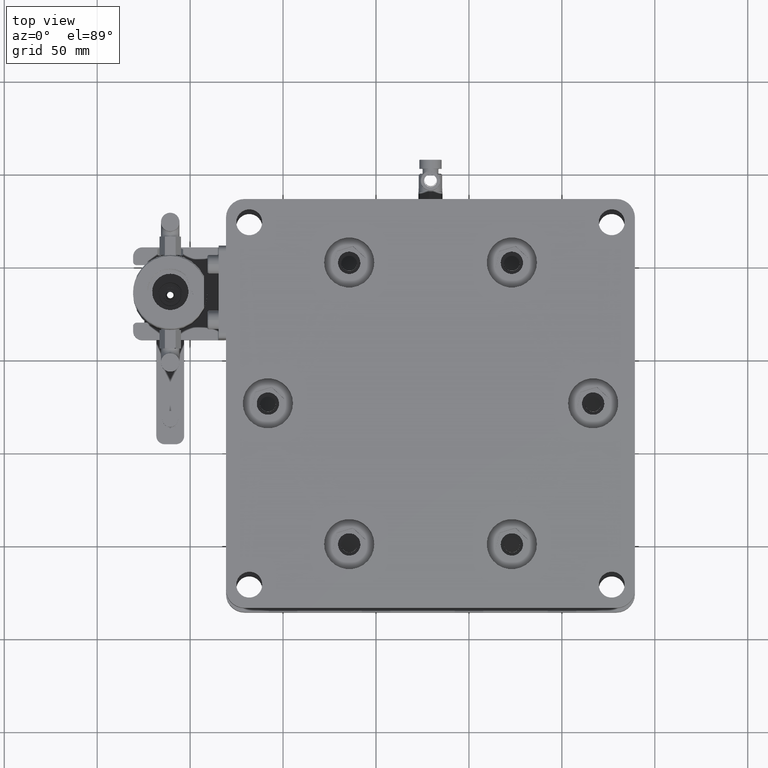
[diagram: clean part render]
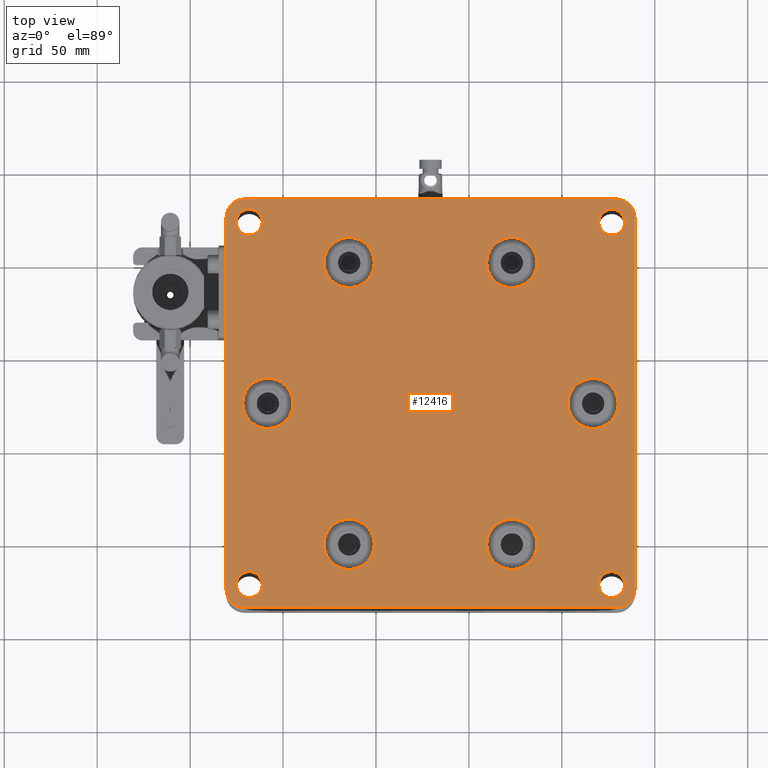
[diagram: same view with one face highlighted and labeled with its STEP entity id]
A machine part, top view. The second image highlights one B-rep face of the part: STEP entity #12416.
In plain terms, the highlighted planar face has unit normal (0, 0, -1).
Its self-contained STEP definition (entity closure, byte-faithful):
#233 = CIRCLE ( 'NONE', #8256, 13.49999999999999822 ) ;
#736 = EDGE_LOOP ( 'NONE', ( #2737 ) ) ;
#777 = AXIS2_PLACEMENT_3D ( 'NONE', #24459, #6554, #15895 ) ;
#818 = CARTESIAN_POINT ( 'NONE',  ( 233.8094785136826204, 71.95413560931456232, 239.0000000000000568 ) ) ;
#955 = AXIS2_PLACEMENT_3D ( 'NONE', #17977, #18129, #11451 ) ;
#979 = CARTESIAN_POINT ( 'NONE',  ( 229.3094785136825919, -125.5458643906854377, 239.0000000000000568 ) ) ;
#1031 = AXIS2_PLACEMENT_3D ( 'NONE', #24325, #24613, #15449 ) ;
#1082 = DIRECTION ( 'NONE',  ( 0.000000000000000000, 0.000000000000000000, 1.000000000000000000 ) ) ;
#1194 = EDGE_CURVE ( 'NONE', #17726, #7972, #18396, .T. ) ;
#1322 = ORIENTED_EDGE ( 'NONE', *, *, #20630, .F. ) ;
#2098 = DIRECTION ( 'NONE',  ( 0.000000000000000000, 0.000000000000000000, 1.000000000000000000 ) ) ;
#2522 = ORIENTED_EDGE ( 'NONE', *, *, #19896, .T. ) ;
#2614 = DIRECTION ( 'NONE',  ( 1.000000000000000000, 0.000000000000000000, 0.000000000000000000 ) ) ;
#2737 = ORIENTED_EDGE ( 'NONE', *, *, #16962, .F. ) ;
#2822 = ORIENTED_EDGE ( 'NONE', *, *, #27572, .F. ) ;
#2913 = DIRECTION ( 'NONE',  ( 0.000000000000000000, 0.000000000000000000, -1.000000000000000000 ) ) ;
#3037 = CIRCLE ( 'NONE', #23348, 13.49999999999999822 ) ;
#3382 = VECTOR ( 'NONE', #11846, 1000.000000000000000 ) ;
#3619 = CIRCLE ( 'NONE', #777, 10.00000000000000178 ) ;
#3912 = ORIENTED_EDGE ( 'NONE', *, *, #6118, .T. ) ;
#3934 = CIRCLE ( 'NONE', #15257, 13.49999999999999822 ) ;
#4060 = CARTESIAN_POINT ( 'NONE',  ( 99.05947851368186718, 50.23135844044783482, 239.0000000000000568 ) ) ;
#4450 = ORIENTED_EDGE ( 'NONE', *, *, #11811, .T. ) ;
#4475 = VERTEX_POINT ( 'NONE', #26631 ) ;
#4969 = DIRECTION ( 'NONE',  ( 0.000000000000000000, 0.000000000000000000, 1.000000000000000000 ) ) ;
#5165 = CARTESIAN_POINT ( 'NONE',  ( 19.30947851368255996, 74.45413560931457653, 239.0000000000000568 ) ) ;
#5176 = DIRECTION ( 'NONE',  ( 0.000000000000000000, 0.000000000000000000, -1.000000000000000000 ) ) ;
#5273 = AXIS2_PLACEMENT_3D ( 'NONE', #28868, #8596, #8885 ) ;
#5527 = EDGE_LOOP ( 'NONE', ( #27874 ) ) ;
#5573 = DIRECTION ( 'NONE',  ( 0.000000000000000000, 0.000000000000000000, 1.000000000000000000 ) ) ;
#5872 = DIRECTION ( 'NONE',  ( 1.000000000000000000, 0.000000000000000000, 0.000000000000000000 ) ) ;
#6118 = EDGE_CURVE ( 'NONE', #26431, #26431, #16491, .T. ) ;
#6283 = EDGE_LOOP ( 'NONE', ( #10909, #21969, #12516, #28483, #10288, #4450, #2822, #6838 ) ) ;
#6389 = DIRECTION ( 'NONE',  ( 1.000000000000000000, 0.000000000000000000, 0.000000000000000000 ) ) ;
#6554 = DIRECTION ( 'NONE',  ( 0.000000000000000000, 0.000000000000000000, -1.000000000000000000 ) ) ;
#6738 = CARTESIAN_POINT ( 'NONE',  ( 55.30947851368482304, -25.54586439069091242, 239.0000000000000568 ) ) ;
#6838 = ORIENTED_EDGE ( 'NONE', *, *, #1194, .T. ) ;
#7002 = EDGE_LOOP ( 'NONE', ( #9135 ) ) ;
#7003 = DIRECTION ( 'NONE',  ( 1.000000000000000000, 0.000000000000000000, -0.000000000000000000 ) ) ;
#7023 = LINE ( 'NONE', #22426, #24634 ) ;
#7395 = DIRECTION ( 'NONE',  ( -1.000000000000000000, 0.000000000000000000, 0.000000000000000000 ) ) ;
#7616 = VERTEX_POINT ( 'NONE', #14426 ) ;
#7626 = DIRECTION ( 'NONE',  ( 0.000000000000000000, 0.000000000000000000, -1.000000000000000000 ) ) ;
#7866 = CARTESIAN_POINT ( 'NONE',  ( 173.0594785136807729, 50.23135844045062015, 239.0000000000000568 ) ) ;
#7972 = VERTEX_POINT ( 'NONE', #12966 ) ;
#8040 = EDGE_LOOP ( 'NONE', ( #27499 ) ) ;
#8256 = AXIS2_PLACEMENT_3D ( 'NONE', #12228, #5573, #5872 ) ;
#8596 = DIRECTION ( 'NONE',  ( -0.000000000000000000, -0.000000000000000000, -1.000000000000000000 ) ) ;
#8885 = DIRECTION ( 'NONE',  ( 1.000000000000000000, 0.000000000000000000, 0.000000000000000000 ) ) ;
#9033 = EDGE_CURVE ( 'NONE', #22939, #15880, #20314, .T. ) ;
#9135 = ORIENTED_EDGE ( 'NONE', *, *, #16021, .F. ) ;
#9388 = VERTEX_POINT ( 'NONE', #6738 ) ;
#9837 = FACE_BOUND ( 'NONE', #20281, .T. ) ;
#9992 = FACE_BOUND ( 'NONE', #25062, .T. ) ;
#10288 = ORIENTED_EDGE ( 'NONE', *, *, #14106, .F. ) ;
#10908 = AXIS2_PLACEMENT_3D ( 'NONE', #979, #7626, #26116 ) ;
#10909 = ORIENTED_EDGE ( 'NONE', *, *, #18801, .F. ) ;
#10954 = VECTOR ( 'NONE', #7003, 1000.000000000000000 ) ;
#11168 = CARTESIAN_POINT ( 'NONE',  ( 186.5594785136807729, 50.23135844045062015, 239.0000000000000568 ) ) ;
#11451 = DIRECTION ( 'NONE',  ( 1.000000000000000000, 0.000000000000000000, 0.000000000000000000 ) ) ;
#11462 = VERTEX_POINT ( 'NONE', #26864 ) ;
#11555 = CARTESIAN_POINT ( 'NONE',  ( 19.30947851368255996, -135.5458643906854377, 239.0000000000000568 ) ) ;
#11811 = EDGE_CURVE ( 'NONE', #22264, #4475, #18659, .T. ) ;
#11846 = DIRECTION ( 'NONE',  ( -0.000000000000000000, -1.000000000000000000, -0.000000000000000000 ) ) ;
#11903 = VERTEX_POINT ( 'NONE', #13980 ) ;
#11912 = CARTESIAN_POINT ( 'NONE',  ( 31.80947851368258483, 71.95413560931456232, 239.0000000000000568 ) ) ;
#12187 = VERTEX_POINT ( 'NONE', #27884 ) ;
#12228 = CARTESIAN_POINT ( 'NONE',  ( 85.55947851368186718, 50.23135844044783482, 239.0000000000000568 ) ) ;
#12416 = ADVANCED_FACE ( 'NONE', ( #14285, #16513, #25524, #14435, #9837, #18863, #27893, #16660, #25677, #23454, #9992 ), #15312, .F. ) ;
#12493 = CARTESIAN_POINT ( 'NONE',  ( 230.3094785136825635, -25.54586439068544479, 239.0000000000000568 ) ) ;
#12516 = ORIENTED_EDGE ( 'NONE', *, *, #9033, .F. ) ;
#12617 = CIRCLE ( 'NONE', #17819, 13.49999999999998401 ) ;
#12966 = CARTESIAN_POINT ( 'NONE',  ( 229.3094785136826204, -135.5458643906854377, 239.0000000000000568 ) ) ;
#13576 = EDGE_LOOP ( 'NONE', ( #1322 ) ) ;
#13643 = AXIS2_PLACEMENT_3D ( 'NONE', #21214, #18704, #25365 ) ;
#13733 = AXIS2_PLACEMENT_3D ( 'NONE', #11912, #18717, #2614 ) ;
#13851 = AXIS2_PLACEMENT_3D ( 'NONE', #16618, #14396, #23416 ) ;
#13980 = CARTESIAN_POINT ( 'NONE',  ( 38.80947851368258483, 71.95413560931456232, 239.0000000000000568 ) ) ;
#13985 = DIRECTION ( 'NONE',  ( 1.000000000000000000, 0.000000000000000000, 0.000000000000000000 ) ) ;
#14106 = EDGE_CURVE ( 'NONE', #22264, #16344, #28479, .T. ) ;
#14123 = VERTEX_POINT ( 'NONE', #818 ) ;
#14126 = CARTESIAN_POINT ( 'NONE',  ( 239.3094785136825635, -125.5458643906854377, 239.0000000000000568 ) ) ;
#14180 = CIRCLE ( 'NONE', #955, 7.000000000000006217 ) ;
#14285 = FACE_OUTER_BOUND ( 'NONE', #6283, .T. ) ;
#14396 = DIRECTION ( 'NONE',  ( 0.000000000000000000, 0.000000000000000000, 1.000000000000000000 ) ) ;
#14426 = CARTESIAN_POINT ( 'NONE',  ( 186.5594785136855478, -101.3230872218242240, 239.0000000000000568 ) ) ;
#14435 = FACE_BOUND ( 'NONE', #736, .T. ) ;
#14504 = CARTESIAN_POINT ( 'NONE',  ( 229.3094785136826204, 74.45413560931457653, 239.0000000000000568 ) ) ;
#14634 = EDGE_CURVE ( 'NONE', #11462, #11462, #3934, .T. ) ;
#14694 = DIRECTION ( 'NONE',  ( -1.000000000000000000, 0.000000000000000000, 0.000000000000000000 ) ) ;
#14800 = CARTESIAN_POINT ( 'NONE',  ( 29.30947851368255996, 84.45413560931459074, 239.0000000000000568 ) ) ;
#15257 = AXIS2_PLACEMENT_3D ( 'NONE', #25231, #4969, #13985 ) ;
#15312 = PLANE ( 'NONE',  #1031 ) ;
#15449 = DIRECTION ( 'NONE',  ( -1.000000000000000000, 0.000000000000000000, -0.000000000000000000 ) ) ;
#15880 = VERTEX_POINT ( 'NONE', #25941 ) ;
#15895 = DIRECTION ( 'NONE',  ( -1.000000000000000000, 0.000000000000000000, 0.000000000000000000 ) ) ;
#16021 = EDGE_CURVE ( 'NONE', #24489, #24489, #17187, .T. ) ;
#16116 = CIRCLE ( 'NONE', #10908, 10.00000000000000888 ) ;
#16344 = VERTEX_POINT ( 'NONE', #14800 ) ;
#16377 = CARTESIAN_POINT ( 'NONE',  ( 19.30947851368255996, 84.45413560931459074, 239.0000000000000568 ) ) ;
#16423 = EDGE_CURVE ( 'NONE', #22939, #16344, #25240, .T. ) ;
#16491 = CIRCLE ( 'NONE', #13643, 6.999999999999999112 ) ;
#16513 = FACE_BOUND ( 'NONE', #7002, .T. ) ;
#16618 = CARTESIAN_POINT ( 'NONE',  ( 173.0594785136855194, -101.3230872218242240, 239.0000000000000568 ) ) ;
#16660 = FACE_BOUND ( 'NONE', #20436, .T. ) ;
#16962 = EDGE_CURVE ( 'NONE', #9388, #9388, #3037, .T. ) ;
#17187 = CIRCLE ( 'NONE', #22378, 13.49999999999998401 ) ;
#17466 = EDGE_CURVE ( 'NONE', #14123, #14123, #14180, .T. ) ;
#17726 = VERTEX_POINT ( 'NONE', #28603 ) ;
#17819 = AXIS2_PLACEMENT_3D ( 'NONE', #26518, #26670, #6389 ) ;
#17828 = EDGE_LOOP ( 'NONE', ( #3912 ) ) ;
#17977 = CARTESIAN_POINT ( 'NONE',  ( 226.8094785136825919, 71.95413560931456232, 239.0000000000000568 ) ) ;
#18129 = DIRECTION ( 'NONE',  ( -0.000000000000000000, -0.000000000000000000, -1.000000000000000000 ) ) ;
#18223 = ORIENTED_EDGE ( 'NONE', *, *, #14634, .F. ) ;
#18291 = DIRECTION ( 'NONE',  ( -1.000000000000000000, -0.000000000000000000, -0.000000000000000000 ) ) ;
#18396 = LINE ( 'NONE', #18833, #10954 ) ;
#18659 = LINE ( 'NONE', #11555, #3382 ) ;
#18691 = EDGE_CURVE ( 'NONE', #11903, #11903, #26494, .T. ) ;
#18704 = DIRECTION ( 'NONE',  ( -0.000000000000000000, -0.000000000000000000, -1.000000000000000000 ) ) ;
#18717 = DIRECTION ( 'NONE',  ( -0.000000000000000000, -0.000000000000000000, -1.000000000000000000 ) ) ;
#18801 = EDGE_CURVE ( 'NONE', #27250, #7972, #16116, .T. ) ;
#18833 = CARTESIAN_POINT ( 'NONE',  ( 19.30947851368255996, -135.5458643906854377, 239.0000000000000568 ) ) ;
#18863 = FACE_BOUND ( 'NONE', #13576, .T. ) ;
#19289 = VERTEX_POINT ( 'NONE', #4060 ) ;
#19504 = CIRCLE ( 'NONE', #13851, 13.50000000000001243 ) ;
#19747 = EDGE_CURVE ( 'NONE', #27250, #15880, #7023, .T. ) ;
#19896 = EDGE_CURVE ( 'NONE', #12187, #12187, #27948, .T. ) ;
#20203 = CARTESIAN_POINT ( 'NONE',  ( 229.3094785136826204, 84.45413560931459074, 239.0000000000000568 ) ) ;
#20281 = EDGE_LOOP ( 'NONE', ( #18223 ) ) ;
#20314 = CIRCLE ( 'NONE', #26955, 10.00000000000000888 ) ;
#20436 = EDGE_LOOP ( 'NONE', ( #24167 ) ) ;
#20575 = EDGE_LOOP ( 'NONE', ( #2522 ) ) ;
#20621 = ORIENTED_EDGE ( 'NONE', *, *, #17466, .T. ) ;
#20630 = EDGE_CURVE ( 'NONE', #7616, #7616, #19504, .T. ) ;
#21214 = CARTESIAN_POINT ( 'NONE',  ( 31.80947851368258483, -123.0458643906854661, 239.0000000000000568 ) ) ;
#21969 = ORIENTED_EDGE ( 'NONE', *, *, #19747, .T. ) ;
#22264 = VERTEX_POINT ( 'NONE', #5165 ) ;
#22378 = AXIS2_PLACEMENT_3D ( 'NONE', #7866, #1082, #23111 ) ;
#22426 = CARTESIAN_POINT ( 'NONE',  ( 239.3094785136825635, -135.5458643906854377, 239.0000000000000568 ) ) ;
#22939 = VERTEX_POINT ( 'NONE', #20203 ) ;
#23111 = DIRECTION ( 'NONE',  ( 1.000000000000000000, 0.000000000000000000, 0.000000000000000000 ) ) ;
#23348 = AXIS2_PLACEMENT_3D ( 'NONE', #29015, #2098, #24419 ) ;
#23416 = DIRECTION ( 'NONE',  ( 1.000000000000000000, 0.000000000000000000, 0.000000000000000000 ) ) ;
#23454 = FACE_BOUND ( 'NONE', #20575, .T. ) ;
#24060 = CARTESIAN_POINT ( 'NONE',  ( 38.80947851368258483, -123.0458643906854661, 239.0000000000000568 ) ) ;
#24083 = EDGE_CURVE ( 'NONE', #19289, #19289, #233, .T. ) ;
#24167 = ORIENTED_EDGE ( 'NONE', *, *, #18691, .T. ) ;
#24325 = CARTESIAN_POINT ( 'NONE',  ( 129.3094785136825635, -25.54586439068544479, 239.0000000000000568 ) ) ;
#24419 = DIRECTION ( 'NONE',  ( 1.000000000000000000, 0.000000000000000000, 0.000000000000000000 ) ) ;
#24459 = CARTESIAN_POINT ( 'NONE',  ( 29.30947851368255996, -125.5458643906854377, 239.0000000000000568 ) ) ;
#24489 = VERTEX_POINT ( 'NONE', #11168 ) ;
#24613 = DIRECTION ( 'NONE',  ( 0.000000000000000000, 0.000000000000000000, -1.000000000000000000 ) ) ;
#24634 = VECTOR ( 'NONE', #25078, 1000.000000000000000 ) ;
#24759 = VECTOR ( 'NONE', #18291, 1000.000000000000000 ) ;
#25062 = EDGE_LOOP ( 'NONE', ( #20621 ) ) ;
#25078 = DIRECTION ( 'NONE',  ( 0.000000000000000000, 1.000000000000000000, -0.000000000000000000 ) ) ;
#25155 = AXIS2_PLACEMENT_3D ( 'NONE', #25929, #2913, #14694 ) ;
#25231 = CARTESIAN_POINT ( 'NONE',  ( 85.55947851368664203, -101.3230872218269525, 239.0000000000000568 ) ) ;
#25240 = LINE ( 'NONE', #16377, #24759 ) ;
#25365 = DIRECTION ( 'NONE',  ( 1.000000000000000000, 0.000000000000000000, 0.000000000000000000 ) ) ;
#25524 = FACE_BOUND ( 'NONE', #5527, .T. ) ;
#25677 = FACE_BOUND ( 'NONE', #17828, .T. ) ;
#25929 = CARTESIAN_POINT ( 'NONE',  ( 29.30947851368255996, 74.45413560931459074, 239.0000000000000568 ) ) ;
#25941 = CARTESIAN_POINT ( 'NONE',  ( 239.3094785136825919, 74.45413560931457653, 239.0000000000000568 ) ) ;
#26116 = DIRECTION ( 'NONE',  ( -1.000000000000000000, 0.000000000000000000, 0.000000000000000000 ) ) ;
#26431 = VERTEX_POINT ( 'NONE', #24060 ) ;
#26494 = CIRCLE ( 'NONE', #13733, 6.999999999999999112 ) ;
#26518 = CARTESIAN_POINT ( 'NONE',  ( 216.8094785136825635, -25.54586439068544479, 239.0000000000000568 ) ) ;
#26631 = CARTESIAN_POINT ( 'NONE',  ( 19.30947851368255996, -125.5458643906854377, 239.0000000000000568 ) ) ;
#26670 = DIRECTION ( 'NONE',  ( 0.000000000000000000, 0.000000000000000000, 1.000000000000000000 ) ) ;
#26864 = CARTESIAN_POINT ( 'NONE',  ( 99.05947851368664203, -101.3230872218269525, 239.0000000000000568 ) ) ;
#26955 = AXIS2_PLACEMENT_3D ( 'NONE', #14504, #5176, #7395 ) ;
#27250 = VERTEX_POINT ( 'NONE', #14126 ) ;
#27499 = ORIENTED_EDGE ( 'NONE', *, *, #28236, .F. ) ;
#27572 = EDGE_CURVE ( 'NONE', #17726, #4475, #3619, .T. ) ;
#27874 = ORIENTED_EDGE ( 'NONE', *, *, #24083, .F. ) ;
#27884 = CARTESIAN_POINT ( 'NONE',  ( 233.8094785136826204, -123.0458643906854661, 239.0000000000000568 ) ) ;
#27893 = FACE_BOUND ( 'NONE', #8040, .T. ) ;
#27948 = CIRCLE ( 'NONE', #5273, 7.000000000000006217 ) ;
#28236 = EDGE_CURVE ( 'NONE', #28619, #28619, #12617, .T. ) ;
#28479 = CIRCLE ( 'NONE', #25155, 10.00000000000000178 ) ;
#28483 = ORIENTED_EDGE ( 'NONE', *, *, #16423, .T. ) ;
#28603 = CARTESIAN_POINT ( 'NONE',  ( 29.30947851368255996, -135.5458643906854377, 239.0000000000000568 ) ) ;
#28619 = VERTEX_POINT ( 'NONE', #12493 ) ;
#28868 = CARTESIAN_POINT ( 'NONE',  ( 226.8094785136825919, -123.0458643906854661, 239.0000000000000568 ) ) ;
#29015 = CARTESIAN_POINT ( 'NONE',  ( 41.80947851368483015, -25.54586439069091242, 239.0000000000000568 ) ) ;